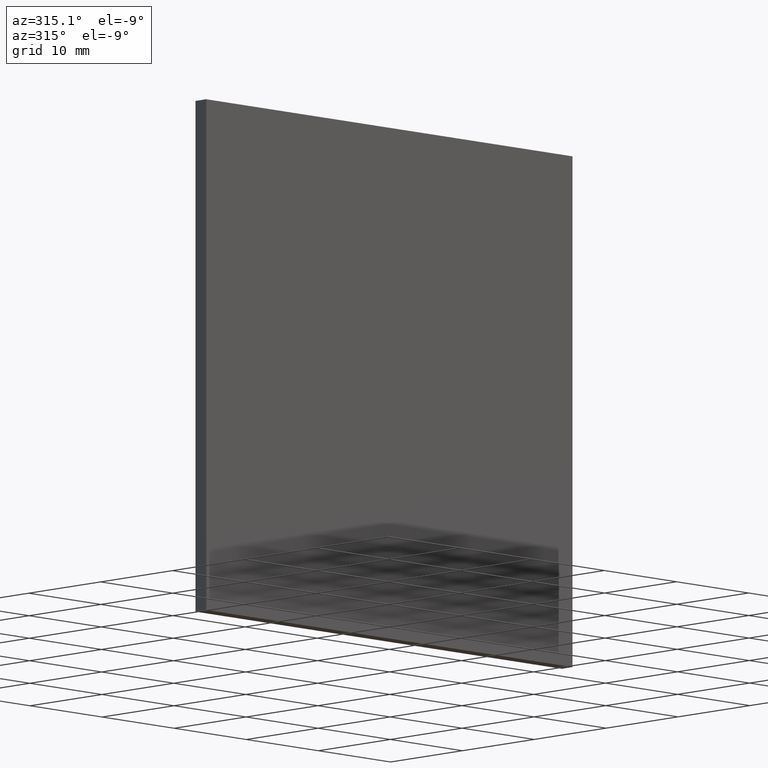
[diagram: clean part render]
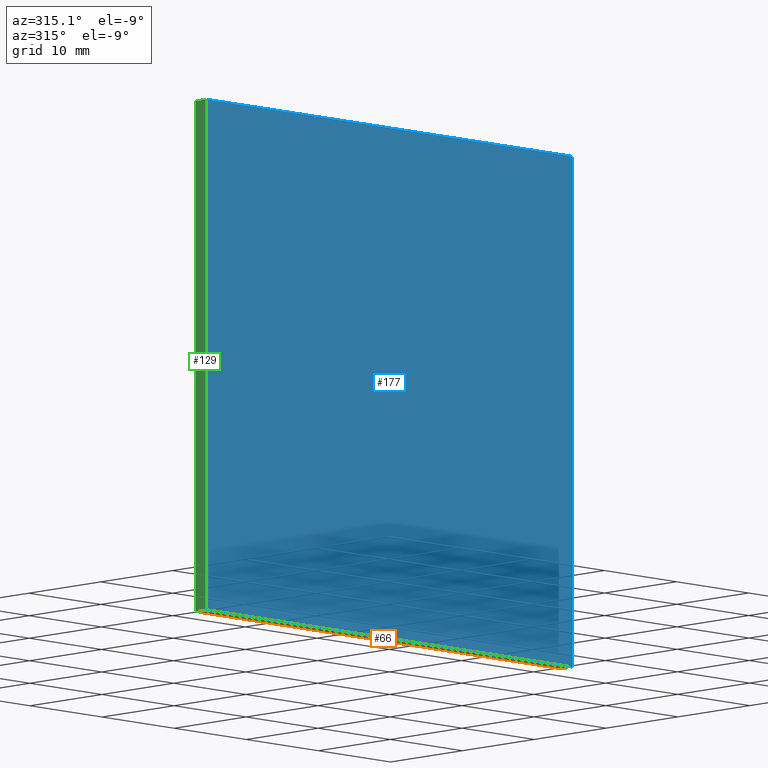
[diagram: same view with three faces highlighted in distinct colors, each labeled with its STEP entity id]
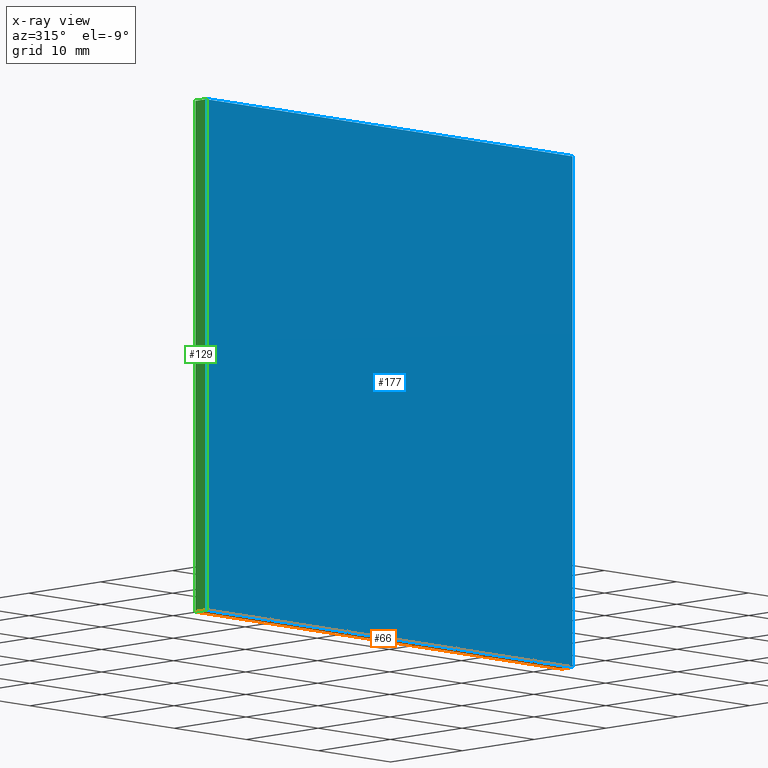
[diagram: x-ray of the same camera — body ghosted, the three highlighted faces saturated]
A machine part, auxiliary view with three faces highlighted in distinct colors.
The next image is the same camera in x-ray (body ghosted, the three faces saturated) — at least one of them is partly hidden behind the body in this view.
Their STEP definitions:

[orange] entity #66 — the highlighted planar face has unit normal (0, 0, 1).
#1 = FACE_OUTER_BOUND ( 'NONE', #18, .T. ) ;
#2 = VECTOR ( 'NONE', #26, 1000.000000000000000 ) ;
#3 = VERTEX_POINT ( 'NONE', #104 ) ;
#16 = VERTEX_POINT ( 'NONE', #105 ) ;
#18 = EDGE_LOOP ( 'NONE', ( #65, #136, #185, #23 ) ) ;
#23 = ORIENTED_EDGE ( 'NONE', *, *, #173, .T. ) ;
#24 = DIRECTION ( 'NONE',  ( -1.000000000000000000, -0.0000000000000000000, -0.0000000000000000000 ) ) ;
#25 = CARTESIAN_POINT ( 'NONE',  ( 25.39999999999999500, 1.500000000000000000, -25.39999999999999900 ) ) ;
#26 = DIRECTION ( 'NONE',  ( -0.0000000000000000000, -1.000000000000000000, -0.0000000000000000000 ) ) ;
#32 = PLANE ( 'NONE',  #68 ) ;
#44 = CARTESIAN_POINT ( 'NONE',  ( -25.40000000000000200, 1.500000000000000000, -25.39999999999999900 ) ) ;
#45 = EDGE_CURVE ( 'NONE', #3, #16, #78, .T. ) ;
#49 = CARTESIAN_POINT ( 'NONE',  ( 25.39999999999999500, 1.500000000000000000, -25.39999999999999900 ) ) ;
#65 = ORIENTED_EDGE ( 'NONE', *, *, #85, .T. ) ;
#66 = ADVANCED_FACE ( 'NONE', ( #1 ), #32, .F. ) ;
#68 = AXIS2_PLACEMENT_3D ( 'NONE', #44, #77, #187 ) ;
#77 = DIRECTION ( 'NONE',  ( 0.0000000000000000000, 0.0000000000000000000, 1.000000000000000000 ) ) ;
#78 = LINE ( 'NONE', #179, #160 ) ;
#85 = EDGE_CURVE ( 'NONE', #102, #16, #178, .T. ) ;
#93 = DIRECTION ( 'NONE',  ( -1.000000000000000000, -0.0000000000000000000, -0.0000000000000000000 ) ) ;
#102 = VERTEX_POINT ( 'NONE', #124 ) ;
#103 = VECTOR ( 'NONE', #93, 1000.000000000000000 ) ;
#104 = CARTESIAN_POINT ( 'NONE',  ( -25.40000000000000200, 1.500000000000000000, -25.39999999999999900 ) ) ;
#105 = CARTESIAN_POINT ( 'NONE',  ( -25.40000000000000200, 0.0000000000000000000, -25.39999999999999900 ) ) ;
#113 = DIRECTION ( 'NONE',  ( -0.0000000000000000000, -1.000000000000000000, -0.0000000000000000000 ) ) ;
#124 = CARTESIAN_POINT ( 'NONE',  ( 25.39999999999999500, 0.0000000000000000000, -25.39999999999999900 ) ) ;
#127 = LINE ( 'NONE', #25, #2 ) ;
#128 = EDGE_CURVE ( 'NONE', #131, #3, #168, .T. ) ;
#131 = VERTEX_POINT ( 'NONE', #49 ) ;
#136 = ORIENTED_EDGE ( 'NONE', *, *, #45, .F. ) ;
#145 = VECTOR ( 'NONE', #24, 1000.000000000000000 ) ;
#160 = VECTOR ( 'NONE', #113, 1000.000000000000000 ) ;
#165 = CARTESIAN_POINT ( 'NONE',  ( -25.40000000000000200, 1.500000000000000000, -25.39999999999999900 ) ) ;
#168 = LINE ( 'NONE', #165, #145 ) ;
#173 = EDGE_CURVE ( 'NONE', #131, #102, #127, .T. ) ;
#178 = LINE ( 'NONE', #195, #103 ) ;
#179 = CARTESIAN_POINT ( 'NONE',  ( -25.40000000000000200, 1.500000000000000000, -25.39999999999999900 ) ) ;
#185 = ORIENTED_EDGE ( 'NONE', *, *, #128, .F. ) ;
#187 = DIRECTION ( 'NONE',  ( 1.000000000000000000, 0.0000000000000000000, -0.0000000000000000000 ) ) ;
#195 = CARTESIAN_POINT ( 'NONE',  ( -25.40000000000000200, 0.0000000000000000000, -25.39999999999999900 ) ) ;

[blue] entity #177 — the highlighted planar face has unit normal (0, -1, 0).
#5 = CARTESIAN_POINT ( 'NONE',  ( -25.40000000000000200, 0.0000000000000000000, 25.39999999999999900 ) ) ;
#7 = DIRECTION ( 'NONE',  ( 1.000000000000000000, 0.0000000000000000000, 0.0000000000000000000 ) ) ;
#14 = FACE_OUTER_BOUND ( 'NONE', #115, .T. ) ;
#16 = VERTEX_POINT ( 'NONE', #105 ) ;
#34 = VECTOR ( 'NONE', #159, 1000.000000000000000 ) ;
#40 = ORIENTED_EDGE ( 'NONE', *, *, #120, .F. ) ;
#50 = ORIENTED_EDGE ( 'NONE', *, *, #85, .F. ) ;
#56 = DIRECTION ( 'NONE',  ( 0.0000000000000000000, -1.000000000000000000, 0.0000000000000000000 ) ) ;
#60 = VERTEX_POINT ( 'NONE', #199 ) ;
#67 = ORIENTED_EDGE ( 'NONE', *, *, #142, .F. ) ;
#83 = LINE ( 'NONE', #164, #34 ) ;
#85 = EDGE_CURVE ( 'NONE', #102, #16, #178, .T. ) ;
#87 = DIRECTION ( 'NONE',  ( 0.0000000000000000000, 0.0000000000000000000, -1.000000000000000000 ) ) ;
#90 = VERTEX_POINT ( 'NONE', #170 ) ;
#92 = LINE ( 'NONE', #196, #132 ) ;
#93 = DIRECTION ( 'NONE',  ( -1.000000000000000000, -0.0000000000000000000, -0.0000000000000000000 ) ) ;
#98 = ORIENTED_EDGE ( 'NONE', *, *, #101, .F. ) ;
#101 = EDGE_CURVE ( 'NONE', #16, #90, #83, .T. ) ;
#102 = VERTEX_POINT ( 'NONE', #124 ) ;
#103 = VECTOR ( 'NONE', #93, 1000.000000000000000 ) ;
#105 = CARTESIAN_POINT ( 'NONE',  ( -25.40000000000000200, 0.0000000000000000000, -25.39999999999999900 ) ) ;
#106 = PLANE ( 'NONE',  #134 ) ;
#115 = EDGE_LOOP ( 'NONE', ( #67, #40, #98, #50 ) ) ;
#120 = EDGE_CURVE ( 'NONE', #90, #60, #126, .T. ) ;
#124 = CARTESIAN_POINT ( 'NONE',  ( 25.39999999999999500, 0.0000000000000000000, -25.39999999999999900 ) ) ;
#126 = LINE ( 'NONE', #5, #149 ) ;
#132 = VECTOR ( 'NONE', #87, 1000.000000000000000 ) ;
#134 = AXIS2_PLACEMENT_3D ( 'NONE', #151, #56, #137 ) ;
#137 = DIRECTION ( 'NONE',  ( 0.0000000000000000000, -0.0000000000000000000, -1.000000000000000000 ) ) ;
#142 = EDGE_CURVE ( 'NONE', #60, #102, #92, .T. ) ;
#149 = VECTOR ( 'NONE', #7, 1000.000000000000000 ) ;
#151 = CARTESIAN_POINT ( 'NONE',  ( 0.0000000000000000000, 0.0000000000000000000, 0.0000000000000000000 ) ) ;
#159 = DIRECTION ( 'NONE',  ( -0.0000000000000000000, -0.0000000000000000000, 1.000000000000000000 ) ) ;
#164 = CARTESIAN_POINT ( 'NONE',  ( -25.40000000000000200, 0.0000000000000000000, 25.39999999999999900 ) ) ;
#170 = CARTESIAN_POINT ( 'NONE',  ( -25.40000000000000200, 0.0000000000000000000, 25.39999999999999900 ) ) ;
#177 = ADVANCED_FACE ( 'NONE', ( #14 ), #106, .T. ) ;
#178 = LINE ( 'NONE', #195, #103 ) ;
#195 = CARTESIAN_POINT ( 'NONE',  ( -25.40000000000000200, 0.0000000000000000000, -25.39999999999999900 ) ) ;
#196 = CARTESIAN_POINT ( 'NONE',  ( 25.39999999999999500, 0.0000000000000000000, 25.39999999999999900 ) ) ;
#199 = CARTESIAN_POINT ( 'NONE',  ( 25.39999999999999500, 0.0000000000000000000, 25.39999999999999900 ) ) ;

[green] entity #129 — the highlighted planar face has unit normal (1, -0, 0).
#3 = VERTEX_POINT ( 'NONE', #104 ) ;
#8 = CARTESIAN_POINT ( 'NONE',  ( -25.40000000000000200, 1.500000000000000000, 25.39999999999999900 ) ) ;
#9 = ORIENTED_EDGE ( 'NONE', *, *, #189, .F. ) ;
#16 = VERTEX_POINT ( 'NONE', #105 ) ;
#19 = EDGE_CURVE ( 'NONE', #174, #90, #46, .T. ) ;
#30 = DIRECTION ( 'NONE',  ( -0.0000000000000000000, -0.0000000000000000000, 1.000000000000000000 ) ) ;
#34 = VECTOR ( 'NONE', #159, 1000.000000000000000 ) ;
#37 = EDGE_LOOP ( 'NONE', ( #176, #190, #9, #53 ) ) ;
#43 = CARTESIAN_POINT ( 'NONE',  ( -25.40000000000000200, 1.500000000000000000, 25.39999999999999900 ) ) ;
#45 = EDGE_CURVE ( 'NONE', #3, #16, #78, .T. ) ;
#46 = LINE ( 'NONE', #59, #122 ) ;
#53 = ORIENTED_EDGE ( 'NONE', *, *, #45, .T. ) ;
#54 = DIRECTION ( 'NONE',  ( 1.000000000000000000, -0.0000000000000000000, 0.0000000000000000000 ) ) ;
#59 = CARTESIAN_POINT ( 'NONE',  ( -25.40000000000000200, 1.500000000000000000, 25.39999999999999900 ) ) ;
#78 = LINE ( 'NONE', #179, #160 ) ;
#80 = VECTOR ( 'NONE', #30, 1000.000000000000000 ) ;
#83 = LINE ( 'NONE', #164, #34 ) ;
#90 = VERTEX_POINT ( 'NONE', #170 ) ;
#94 = AXIS2_PLACEMENT_3D ( 'NONE', #43, #54, #150 ) ;
#95 = DIRECTION ( 'NONE',  ( -0.0000000000000000000, -1.000000000000000000, -0.0000000000000000000 ) ) ;
#99 = FACE_OUTER_BOUND ( 'NONE', #37, .T. ) ;
#101 = EDGE_CURVE ( 'NONE', #16, #90, #83, .T. ) ;
#104 = CARTESIAN_POINT ( 'NONE',  ( -25.40000000000000200, 1.500000000000000000, -25.39999999999999900 ) ) ;
#105 = CARTESIAN_POINT ( 'NONE',  ( -25.40000000000000200, 0.0000000000000000000, -25.39999999999999900 ) ) ;
#112 = CARTESIAN_POINT ( 'NONE',  ( -25.40000000000000200, 1.500000000000000000, 25.39999999999999900 ) ) ;
#113 = DIRECTION ( 'NONE',  ( -0.0000000000000000000, -1.000000000000000000, -0.0000000000000000000 ) ) ;
#122 = VECTOR ( 'NONE', #95, 1000.000000000000000 ) ;
#129 = ADVANCED_FACE ( 'NONE', ( #99 ), #135, .F. ) ;
#135 = PLANE ( 'NONE',  #94 ) ;
#146 = LINE ( 'NONE', #112, #80 ) ;
#150 = DIRECTION ( 'NONE',  ( 0.0000000000000000000, 0.0000000000000000000, -1.000000000000000000 ) ) ;
#159 = DIRECTION ( 'NONE',  ( -0.0000000000000000000, -0.0000000000000000000, 1.000000000000000000 ) ) ;
#160 = VECTOR ( 'NONE', #113, 1000.000000000000000 ) ;
#164 = CARTESIAN_POINT ( 'NONE',  ( -25.40000000000000200, 0.0000000000000000000, 25.39999999999999900 ) ) ;
#170 = CARTESIAN_POINT ( 'NONE',  ( -25.40000000000000200, 0.0000000000000000000, 25.39999999999999900 ) ) ;
#174 = VERTEX_POINT ( 'NONE', #8 ) ;
#176 = ORIENTED_EDGE ( 'NONE', *, *, #101, .T. ) ;
#179 = CARTESIAN_POINT ( 'NONE',  ( -25.40000000000000200, 1.500000000000000000, -25.39999999999999900 ) ) ;
#189 = EDGE_CURVE ( 'NONE', #3, #174, #146, .T. ) ;
#190 = ORIENTED_EDGE ( 'NONE', *, *, #19, .F. ) ;